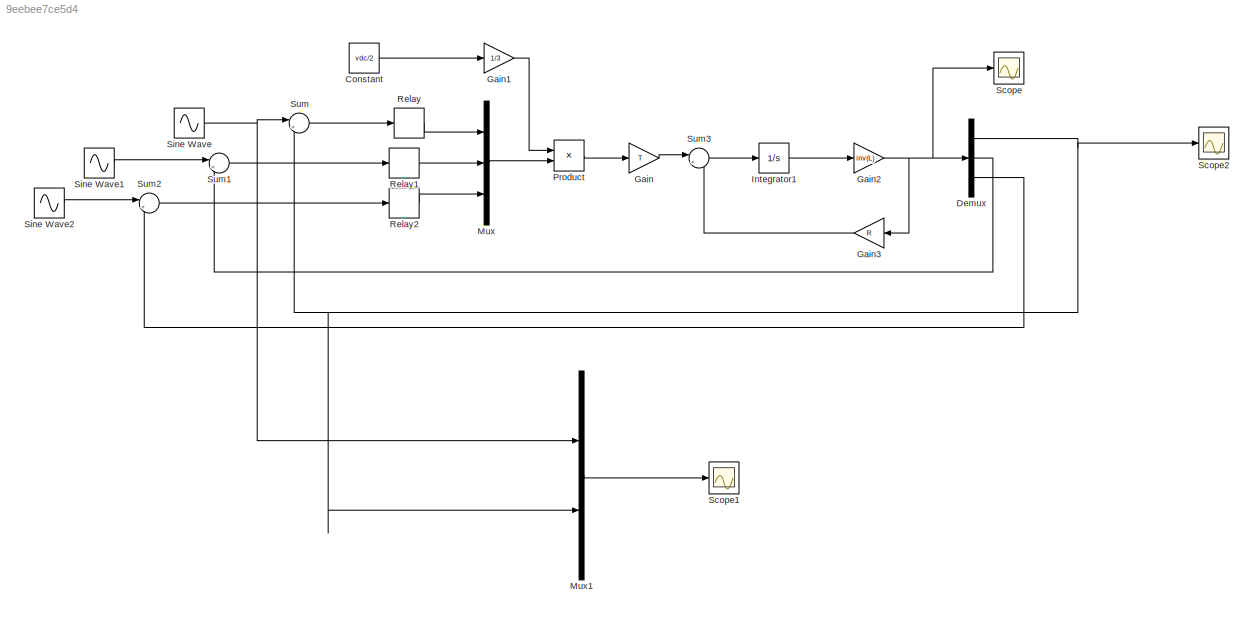
MODEL slx_9eebee7ce5d4
KIND model
CONFIG AbsTol = auto
CONFIG EnableMultiTasking = off
CONFIG FixedStep = 0.00001
CONFIG MaxStep = auto
CONFIG MinStep = auto
CONFIG RelTol = 1e-3
CONFIG SampleTimeConstraint = Unconstrained
CONFIG Solver = FixedStepAuto
CONFIG SolverName = FixedStepAuto
CONFIG StartTime = 0.0
CONFIG StopTime = 10.0
BLOCK [Constant] Constant
  Value = vdc/2
BLOCK [Demux] Demux
  Outputs = 3
  Ports = [1, 3]
BLOCK [Gain] Gain
  Gain = T
  Multiplication = Matrix(K*u)
BLOCK [Gain] Gain1
  Gain = 1/3
BLOCK [Gain] Gain2
  Gain = inv(L)
  Multiplication = Matrix(K*u)
BLOCK [Gain] Gain3
  Gain = R
  Multiplication = Matrix(K*u)
  NameLocation = top
BLOCK [Integrator] Integrator1
  Ports = [1, 1]
BLOCK [Mux] Mux
  DisplayOption = bar
  Inputs = 3
  Ports = [3, 1]
BLOCK [Mux] Mux1
  DisplayOption = bar
  Inputs = 2
  Ports = [2, 1]
BLOCK [Product] Product
  Ports = [2, 1]
BLOCK [Relay] Relay
  OffOutputValue = -1
  OffSwitchValue = -0.5
  OnSwitchValue = 0.5
BLOCK [Relay] Relay1
  OffOutputValue = -1
  OffSwitchValue = -0.5
  OnSwitchValue = 0.5
BLOCK [Relay] Relay2
  OffOutputValue = -1
  OffSwitchValue = -0.5
  OnSwitchValue = 0.5
BLOCK [Scope] Scope
  Floating = off
  NumInputPorts = 1
  Ports = [1]
  ScopeSpecificationString = Simulink.scopes.TimeScopeBlockCfg('CurrentConfiguration', extmgr.ConfigurationSet(extmgr.Configuration('Core','General UI',true),extmgr.Configuration('Core','Source UI',true),extmgr.Configuration('Sources','WiredSimulink',true),extmgr.Configuration('Visuals','Time Domain',true,'SerializedDisplays',{struct('MinYLimReal','-25.30726','MaxYLimReal','25.30865','YLabelReal','','MinYLimMag','0.00000','Ma...<+1424ch>
BLOCK [Scope] Scope1
  Floating = off
  NumInputPorts = 1
  Ports = [1]
  ScopeSpecificationString = Simulink.scopes.TimeScopeBlockCfg('CurrentConfiguration', extmgr.ConfigurationSet(extmgr.Configuration('Core','General UI',true),extmgr.Configuration('Core','Source UI',true),extmgr.Configuration('Sources','WiredSimulink',true,'DataLoggingVariableName','ScopeData1'),extmgr.Configuration('Visuals','Time Domain',true,'SerializedDisplays',{struct('MinYLimReal','-25.71246','MaxYLimReal','25.71307','YL...<+1457ch>
BLOCK [Scope] Scope2
  Floating = off
  NumInputPorts = 1
  Ports = [1]
  ScopeSpecificationString = Simulink.scopes.TimeScopeBlockCfg('CurrentConfiguration', extmgr.ConfigurationSet(extmgr.Configuration('Core','General UI',true),extmgr.Configuration('Core','Source UI',true),extmgr.Configuration('Sources','WiredSimulink',true,'DataLoggingVariableName','ScopeData2','DataLogging',true,'DataLoggingSaveFormat','StructureWithTime'),extmgr.Configuration('Visuals','Time Domain',true,'SerializedDisplays'...<+1481ch>
BLOCK [Sin] Sine Wave
  Amplitude = 20
  Frequency = 2*pi*fref
  Ports = [0, 1]
  SampleTime = 0
BLOCK [Sin] Sine Wave1
  Amplitude = 20
  Frequency = 2*pi*fref
  Phase = -2*pi/3
  Ports = [0, 1]
  SampleTime = 0
BLOCK [Sin] Sine Wave2
  Amplitude = 20
  Frequency = 2*pi*fref
  Phase = 2*pi/3
  Ports = [0, 1]
  SampleTime = 0
BLOCK [Sum] Sum
  Inputs = |+-
  Ports = [2, 1]
BLOCK [Sum] Sum1
  Inputs = |+-
  Ports = [2, 1]
BLOCK [Sum] Sum2
  Inputs = |+-
  Ports = [2, 1]
BLOCK [Sum] Sum3
  Inputs = |+-
  Ports = [2, 1]
LINE Constant:1 -> Gain1:1
NET Demux:1 -> Mux1:2, Scope2:1, Sum:2
LINE Demux:2 -> Sum1:2
LINE Demux:3 -> Sum2:2
LINE Gain1:1 -> Product:1
NET Gain2:1 -> Demux:1, Gain3:1, Scope:1
LINE Gain3:1 -> Sum3:2
LINE Gain:1 -> Sum3:1
LINE Integrator1:1 -> Gain2:1
LINE Mux1:1 -> Scope1:1
LINE Mux:1 -> Product:2
LINE Product:1 -> Gain:1
LINE Relay1:1 -> Mux:2
LINE Relay2:1 -> Mux:3
LINE Relay:1 -> Mux:1
LINE Sine Wave1:1 -> Sum1:1
LINE Sine Wave2:1 -> Sum2:1
NET Sine Wave:1 -> Mux1:1, Sum:1
LINE Sum1:1 -> Relay1:1
LINE Sum2:1 -> Relay2:1
LINE Sum3:1 -> Integrator1:1
LINE Sum:1 -> Relay:1
note: NET lines group one-source signal fan-out (src -> all destinations, sorted); 1:1 wires keep LINE
